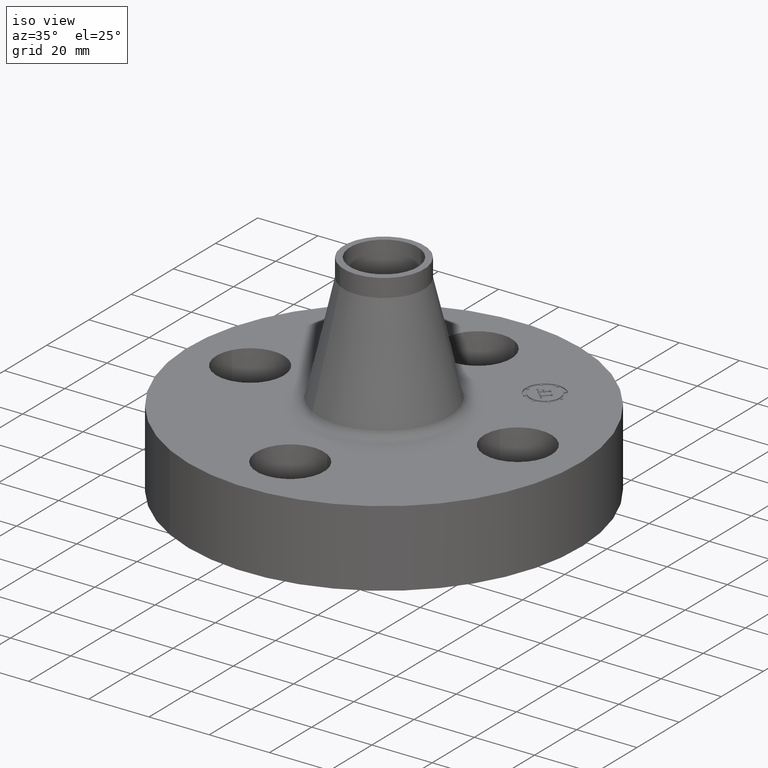
[diagram: clean part render]
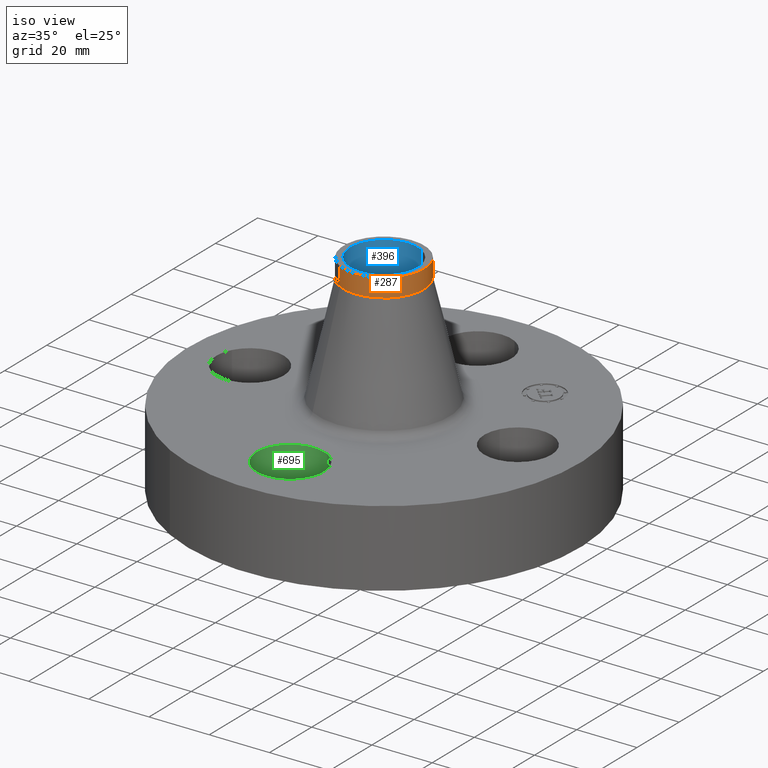
[diagram: same view with three faces highlighted in distinct colors, each labeled with its STEP entity id]
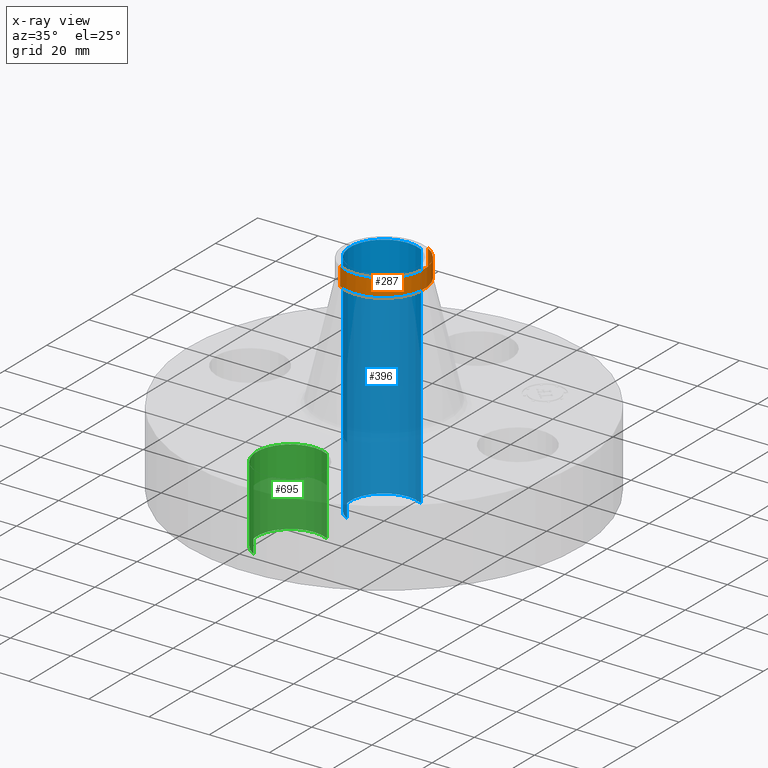
[diagram: x-ray of the same camera — body ghosted, the three highlighted faces saturated]
A machine part, iso view with three faces highlighted in distinct colors.
The next image is the same camera in x-ray (body ghosted, the three faces saturated) — at least one of them is partly hidden behind the body in this view.
Their STEP definitions:

[orange] entity #287 — the highlighted cylindrical surface (partial cylindrical patch) has radius 13.335 mm, axis along (0, 0, -1).
#220=AXIS2_PLACEMENT_3D('Circle Axis2P3D',#218,#219,$) ;
#252=AXIS2_PLACEMENT_3D('Cylinder Axis2P3D',#249,#250,#251) ;
#270=AXIS2_PLACEMENT_3D('Circle Axis2P3D',#268,#269,$) ;
#277=AXIS2_PLACEMENT_3D('Circle Axis2P3D',#275,#276,$) ;
#215=CARTESIAN_POINT('Vertex',(0.251698407768,0.460730844994,2.51051083544)) ;
#218=CARTESIAN_POINT('Axis2P3D Location',(0.,0.,2.51051083544)) ;
#222=CARTESIAN_POINT('Vertex',(-0.251698407768,-0.460730844994,2.51051083544)) ;
#249=CARTESIAN_POINT('Axis2P3D Location',(0.,0.,1.25)) ;
#254=CARTESIAN_POINT('Line Origine',(-0.251698407768,-0.460730844994,2.62862107166)) ;
#258=CARTESIAN_POINT('Vertex',(-0.251698407768,-0.460730844994,2.74673130788)) ;
#261=CARTESIAN_POINT('Line Origine',(0.251698407768,0.460730844994,2.62862107166)) ;
#265=CARTESIAN_POINT('Vertex',(0.251698407768,0.460730844994,2.74673130788)) ;
#268=CARTESIAN_POINT('Axis2P3D Location',(0.,0.,2.74673130788)) ;
#272=CARTESIAN_POINT('Vertex',(0.251698407768,-0.460730844994,2.74673130788)) ;
#275=CARTESIAN_POINT('Axis2P3D Location',(0.,0.,2.74673130788)) ;
#219=DIRECTION('Axis2P3D Direction',(0.,0.,-0.0393700787402)) ;
#250=DIRECTION('Axis2P3D Direction',(0.,0.,-0.0393700787402)) ;
#251=DIRECTION('Axis2P3D XDirection',(-0.0188750212049,-0.0345504945626,0.)) ;
#255=DIRECTION('Vector Direction',(0.,0.,-0.0393700787402)) ;
#262=DIRECTION('Vector Direction',(0.,0.,-0.0393700787402)) ;
#269=DIRECTION('Axis2P3D Direction',(0.,0.,-0.0393700787402)) ;
#276=DIRECTION('Axis2P3D Direction',(0.,0.,-0.0393700787402)) ;
#256=VECTOR('Line Direction',#255,0.0393700787402) ;
#263=VECTOR('Line Direction',#262,0.0393700787402) ;
#281=ORIENTED_EDGE('',*,*,#260,.F.) ;
#282=ORIENTED_EDGE('',*,*,#224,.F.) ;
#283=ORIENTED_EDGE('',*,*,#267,.T.) ;
#284=ORIENTED_EDGE('',*,*,#274,.F.) ;
#285=ORIENTED_EDGE('',*,*,#279,.T.) ;
#287=ADVANCED_FACE('PartBody',(#286),#253,.T.) ;
#221=CIRCLE('generated circle',#220,0.525000000002) ;
#271=CIRCLE('generated circle',#270,0.525000000002) ;
#278=CIRCLE('generated circle',#277,0.525000000002) ;
#253=CYLINDRICAL_SURFACE('generated cylinder',#252,0.525000000002) ;
#224=EDGE_CURVE('',#216,#223,#221,.T.) ;
#260=EDGE_CURVE('',#223,#259,#257,.F.) ;
#267=EDGE_CURVE('',#216,#266,#264,.F.) ;
#274=EDGE_CURVE('',#273,#266,#271,.F.) ;
#279=EDGE_CURVE('',#273,#259,#278,.T.) ;
#280=EDGE_LOOP('',(#281,#282,#283,#284,#285)) ;
#286=FACE_OUTER_BOUND('',#280,.T.) ;
#257=LINE('Line',#254,#256) ;
#264=LINE('Line',#261,#263) ;
#216=VERTEX_POINT('',#215) ;
#223=VERTEX_POINT('',#222) ;
#259=VERTEX_POINT('',#258) ;
#266=VERTEX_POINT('',#265) ;
#273=VERTEX_POINT('',#272) ;

[blue] entity #396 — the highlighted cylindrical surface (partial cylindrical patch) has radius 11.2268 mm, axis along (0, 0, -1).
#343=AXIS2_PLACEMENT_3D('Cylinder Axis2P3D',#340,#341,#342) ;
#382=AXIS2_PLACEMENT_3D('Circle Axis2P3D',#380,#381,$) ;
#387=AXIS2_PLACEMENT_3D('Circle Axis2P3D',#385,#386,$) ;
#340=CARTESIAN_POINT('Axis2P3D Location',(0.,0.,1.25)) ;
#349=CARTESIAN_POINT('Vertex',(0.211906088064,0.387891492357,2.75000000001)) ;
#351=CARTESIAN_POINT('Vertex',(-0.211906088064,-0.387891492357,2.75000000001)) ;
#354=CARTESIAN_POINT('Line Origine',(0.211906088064,0.387891492357,1.25)) ;
#358=CARTESIAN_POINT('Vertex',(0.211906088064,0.387891492357,-0.250000000001)) ;
#365=CARTESIAN_POINT('Vertex',(-0.211906088064,-0.387891492357,-0.250000000001)) ;
#368=CARTESIAN_POINT('Line Origine',(-0.211906088064,-0.387891492357,1.25)) ;
#380=CARTESIAN_POINT('Axis2P3D Location',(0.,0.,2.75000000001)) ;
#385=CARTESIAN_POINT('Axis2P3D Location',(0.,0.,-0.250000000001)) ;
#341=DIRECTION('Axis2P3D Direction',(0.,0.,-0.0393700787402)) ;
#342=DIRECTION('Axis2P3D XDirection',(-0.0188750212049,-0.0345504945626,0.)) ;
#355=DIRECTION('Vector Direction',(0.,0.,-0.0393700787402)) ;
#369=DIRECTION('Vector Direction',(0.,0.,-0.0393700787402)) ;
#381=DIRECTION('Axis2P3D Direction',(0.,0.,-0.0393700787402)) ;
#386=DIRECTION('Axis2P3D Direction',(0.,0.,-0.0393700787402)) ;
#356=VECTOR('Line Direction',#355,0.0393700787402) ;
#370=VECTOR('Line Direction',#369,0.0393700787402) ;
#391=ORIENTED_EDGE('',*,*,#384,.F.) ;
#392=ORIENTED_EDGE('',*,*,#372,.T.) ;
#393=ORIENTED_EDGE('',*,*,#389,.T.) ;
#394=ORIENTED_EDGE('',*,*,#360,.F.) ;
#396=ADVANCED_FACE('PartBody',(#395),#344,.F.) ;
#383=CIRCLE('generated circle',#382,0.442000000002) ;
#388=CIRCLE('generated circle',#387,0.442000000002) ;
#344=CYLINDRICAL_SURFACE('generated cylinder',#343,0.442000000002) ;
#360=EDGE_CURVE('',#350,#359,#357,.T.) ;
#372=EDGE_CURVE('',#352,#366,#371,.T.) ;
#384=EDGE_CURVE('',#352,#350,#383,.T.) ;
#389=EDGE_CURVE('',#366,#359,#388,.T.) ;
#390=EDGE_LOOP('',(#391,#392,#393,#394)) ;
#395=FACE_OUTER_BOUND('',#390,.T.) ;
#357=LINE('Line',#354,#356) ;
#371=LINE('Line',#368,#370) ;
#350=VERTEX_POINT('',#349) ;
#352=VERTEX_POINT('',#351) ;
#359=VERTEX_POINT('',#358) ;
#366=VERTEX_POINT('',#365) ;

[green] entity #695 — the highlighted cylindrical surface (partial cylindrical patch) has radius 11.176 mm, axis along (0, -0, -1).
#523=AXIS2_PLACEMENT_3D('Circle Axis2P3D',#521,#522,$) ;
#656=AXIS2_PLACEMENT_3D('Cylinder Axis2P3D',#653,#654,#655) ;
#686=AXIS2_PLACEMENT_3D('Circle Axis2P3D',#684,#685,$) ;
#516=CARTESIAN_POINT('Vertex',(0.210947236987,-1.36386367277,0.)) ;
#518=CARTESIAN_POINT('Vertex',(-0.210947236987,-2.13613632724,0.)) ;
#521=CARTESIAN_POINT('Axis2P3D Location',(3.49676543189E-017,-1.75000000001,0.)) ;
#653=CARTESIAN_POINT('Axis2P3D Location',(1.07156594926E-016,-1.75000000001,0.99606299213)) ;
#658=CARTESIAN_POINT('Line Origine',(0.210947236987,-1.36386367277,0.500000000002)) ;
#662=CARTESIAN_POINT('Vertex',(0.210947236987,-1.36386367277,1.)) ;
#665=CARTESIAN_POINT('Line Origine',(-0.210947236987,-2.13613632724,0.500000000002)) ;
#669=CARTESIAN_POINT('Vertex',(-0.210947236987,-2.13613632724,1.)) ;
#684=CARTESIAN_POINT('Axis2P3D Location',(1.07156594926E-016,-1.75000000001,1.)) ;
#522=DIRECTION('Axis2P3D Direction',(0.,0.,-0.0393700787402)) ;
#654=DIRECTION('Axis2P3D Direction',(0.,-0.,-0.0393700787402)) ;
#655=DIRECTION('Axis2P3D XDirection',(-0.0188750212049,-0.0345504945626,0.)) ;
#659=DIRECTION('Vector Direction',(0.,0.,-0.0393700787402)) ;
#666=DIRECTION('Vector Direction',(0.,0.,-0.0393700787402)) ;
#685=DIRECTION('Axis2P3D Direction',(0.,-0.,-0.0393700787402)) ;
#660=VECTOR('Line Direction',#659,0.0393700787402) ;
#667=VECTOR('Line Direction',#666,0.0393700787402) ;
#690=ORIENTED_EDGE('',*,*,#671,.F.) ;
#691=ORIENTED_EDGE('',*,*,#525,.T.) ;
#692=ORIENTED_EDGE('',*,*,#664,.T.) ;
#693=ORIENTED_EDGE('',*,*,#688,.F.) ;
#695=ADVANCED_FACE('PartBody',(#694),#657,.F.) ;
#524=CIRCLE('generated circle',#523,0.440000000002) ;
#687=CIRCLE('generated circle',#686,0.440000000002) ;
#657=CYLINDRICAL_SURFACE('generated cylinder',#656,0.440000000002) ;
#525=EDGE_CURVE('',#519,#517,#524,.T.) ;
#664=EDGE_CURVE('',#517,#663,#661,.F.) ;
#671=EDGE_CURVE('',#519,#670,#668,.F.) ;
#688=EDGE_CURVE('',#670,#663,#687,.T.) ;
#689=EDGE_LOOP('',(#690,#691,#692,#693)) ;
#694=FACE_OUTER_BOUND('',#689,.T.) ;
#661=LINE('Line',#658,#660) ;
#668=LINE('Line',#665,#667) ;
#517=VERTEX_POINT('',#516) ;
#519=VERTEX_POINT('',#518) ;
#663=VERTEX_POINT('',#662) ;
#670=VERTEX_POINT('',#669) ;